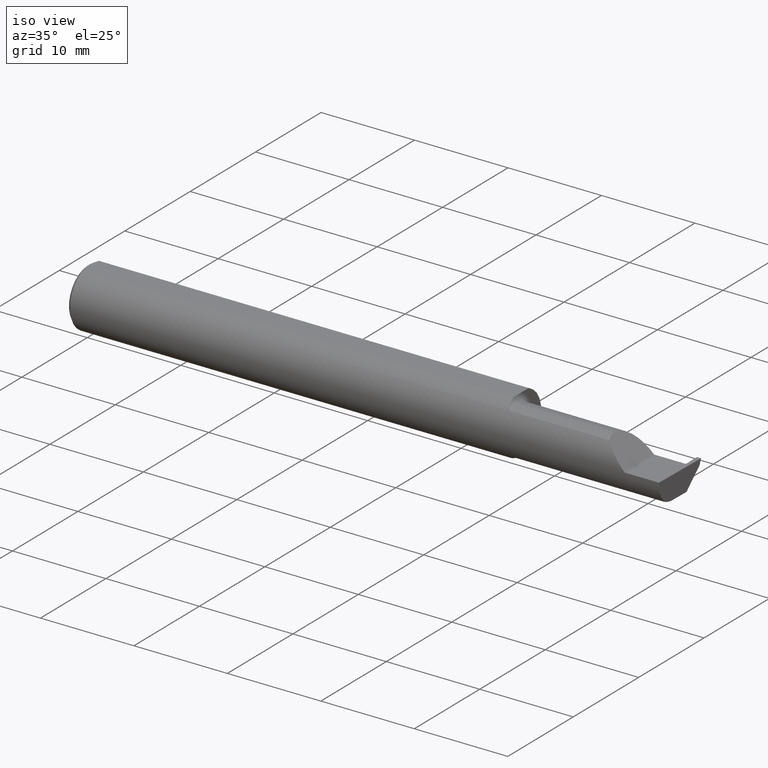
[diagram: clean part render]
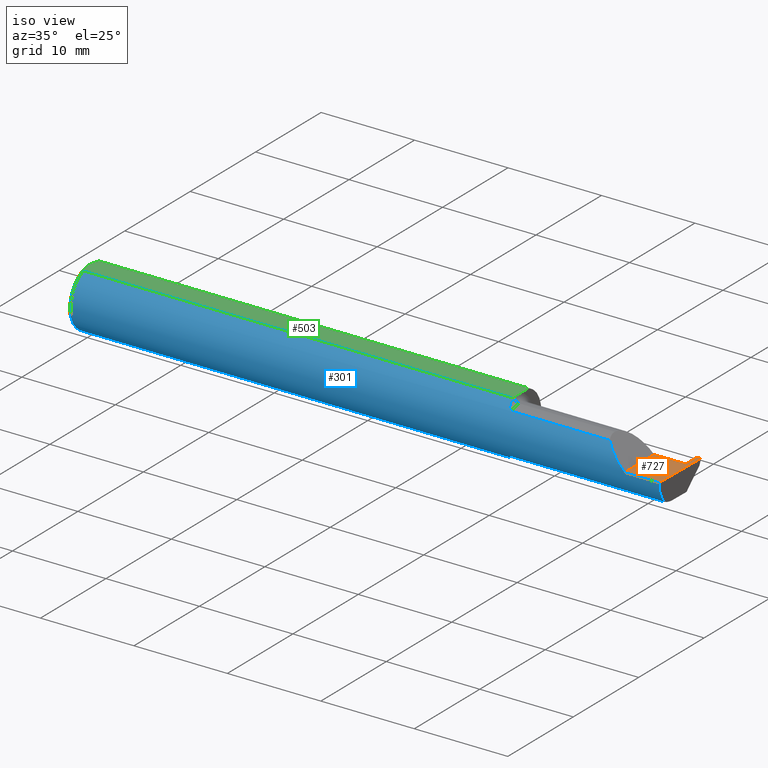
[diagram: same view with three faces highlighted in distinct colors, each labeled with its STEP entity id]
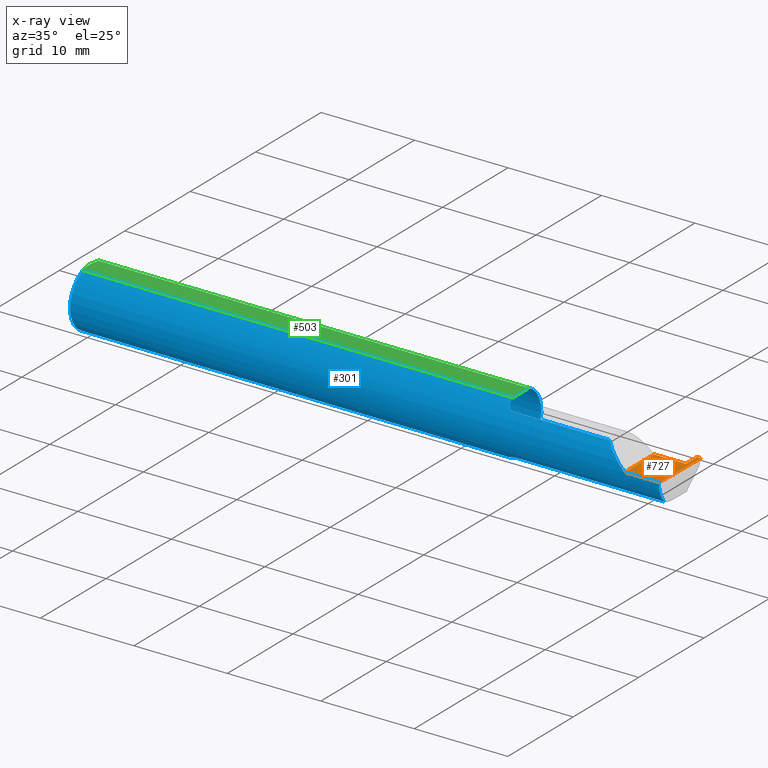
[diagram: x-ray of the same camera — body ghosted, the three highlighted faces saturated]
A machine part, iso view with three faces highlighted in distinct colors.
The next image is the same camera in x-ray (body ghosted, the three faces saturated) — at least one of them is partly hidden behind the body in this view.
Their STEP definitions:

[orange] entity #727 — the highlighted planar face has unit normal (-0, 0, -1).
#1 = VERTEX_POINT ( 'NONE', #428 ) ;
#2 = DIRECTION ( 'NONE',  ( -0.000000000000000000, 1.000000000000000000, -0.000000000000000000 ) ) ;
#4 = VERTEX_POINT ( 'NONE', #366 ) ;
#23 = VECTOR ( 'NONE', #625, 39.37007874015748143 ) ;
#53 = VECTOR ( 'NONE', #253, 39.37007874015748143 ) ;
#61 = VERTEX_POINT ( 'NONE', #266 ) ;
#66 = DIRECTION ( 'NONE',  ( -1.000000000000000000, 0.000000000000000000, 1.224646799147352221E-16 ) ) ;
#69 = CARTESIAN_POINT ( 'NONE',  ( 1.824999999999999956, 0.05414999999999998981, 8.266365894244626938E-17 ) ) ;
#71 = LINE ( 'NONE', #308, #23 ) ;
#93 = ORIENTED_EDGE ( 'NONE', *, *, #730, .T. ) ;
#97 = LINE ( 'NONE', #394, #663 ) ;
#114 = ORIENTED_EDGE ( 'NONE', *, *, #327, .F. ) ;
#120 = CARTESIAN_POINT ( 'NONE',  ( 2.488116473413796825, -0.2002070484001042538, 1.455312279637640045E-18 ) ) ;
#128 = ORIENTED_EDGE ( 'NONE', *, *, #208, .F. ) ;
#129 = FACE_OUTER_BOUND ( 'NONE', #523, .T. ) ;
#161 = LINE ( 'NONE', #120, #478 ) ;
#164 = LINE ( 'NONE', #546, #678 ) ;
#192 = CARTESIAN_POINT ( 'NONE',  ( 2.350000000000000089, -0.2000000000000000111, 1.836970198721028825E-17 ) ) ;
#196 = VECTOR ( 'NONE', #453, 39.37007874015748143 ) ;
#202 = CARTESIAN_POINT ( 'NONE',  ( 2.482499999999999929, 0.05414999999999997593, 8.266348525252012935E-17 ) ) ;
#208 = EDGE_CURVE ( 'NONE', #1, #471, #164, .T. ) ;
#237 = ORIENTED_EDGE ( 'NONE', *, *, #598, .T. ) ;
#239 = VERTEX_POINT ( 'NONE', #531 ) ;
#252 = PLANE ( 'NONE',  #638 ) ;
#253 = DIRECTION ( 'NONE',  ( 1.000000000000000000, 0.000000000000000000, 0.000000000000000000 ) ) ;
#266 = CARTESIAN_POINT ( 'NONE',  ( 2.350000000000000089, 0.05414999999999988572, 1.836970198721028825E-17 ) ) ;
#308 = CARTESIAN_POINT ( 'NONE',  ( 2.499999999999999556, 0.05415000000000005920, 4.902705984595532466E-32 ) ) ;
#327 = EDGE_CURVE ( 'NONE', #61, #541, #618, .T. ) ;
#366 = CARTESIAN_POINT ( 'NONE',  ( 2.495690077103728921, -0.1248499999950965084, 1.733801157256528502E-17 ) ) ;
#371 = CARTESIAN_POINT ( 'NONE',  ( 2.500000000000000000, -0.2000000000000000111, 0.000000000000000000 ) ) ;
#387 = DIRECTION ( 'NONE',  ( 0.01744642479411464761, 0.9998477995484629233, -2.135106780035675284E-18 ) ) ;
#394 = CARTESIAN_POINT ( 'NONE',  ( 2.494380489674781209, -0.1999019447116721915, 6.881915332554903690E-19 ) ) ;
#396 = VERTEX_POINT ( 'NONE', #434 ) ;
#401 = LINE ( 'NONE', #650, #196 ) ;
#428 = CARTESIAN_POINT ( 'NONE',  ( 2.482499999999999929, 0.1221499999999999808, -3.306546357697866753E-19 ) ) ;
#434 = CARTESIAN_POINT ( 'NONE',  ( 2.350000000000000089, -0.1248500000000000026, 1.836970198721028825E-17 ) ) ;
#453 = DIRECTION ( 'NONE',  ( -1.000000000000000000, -0.000000000000000000, -0.000000000000000000 ) ) ;
#468 = EDGE_CURVE ( 'NONE', #4, #471, #97, .T. ) ;
#471 = VERTEX_POINT ( 'NONE', #525 ) ;
#478 = VECTOR ( 'NONE', #720, 39.37007874015748143 ) ;
#523 = EDGE_LOOP ( 'NONE', ( #693, #550, #128, #237, #93, #114, #620 ) ) ;
#525 = CARTESIAN_POINT ( 'NONE',  ( 2.500000000000000444, 0.1221499999999999808, 1.947508823608312588E-17 ) ) ;
#531 = CARTESIAN_POINT ( 'NONE',  ( 2.483684773821554170, 0.05415000000000000369, 1.807306943624157614E-17 ) ) ;
#541 = VERTEX_POINT ( 'NONE', #202 ) ;
#546 = CARTESIAN_POINT ( 'NONE',  ( 2.399999999999999911, 0.1221499999999999808, -3.306546357697866753E-19 ) ) ;
#550 = ORIENTED_EDGE ( 'NONE', *, *, #468, .T. ) ;
#562 = EDGE_CURVE ( 'NONE', #4, #396, #401, .T. ) ;
#598 = EDGE_CURVE ( 'NONE', #1, #239, #161, .T. ) ;
#618 = LINE ( 'NONE', #69, #53 ) ;
#620 = ORIENTED_EDGE ( 'NONE', *, *, #757, .F. ) ;
#621 = DIRECTION ( 'NONE',  ( -1.224646799147352221E-16, 0.000000000000000000, -1.000000000000000000 ) ) ;
#625 = DIRECTION ( 'NONE',  ( -1.000000000000000000, -1.575197027597345022E-15, 1.224646799147352221E-16 ) ) ;
#638 = AXIS2_PLACEMENT_3D ( 'NONE', #371, #621, #66 ) ;
#650 = CARTESIAN_POINT ( 'NONE',  ( 3.749399456654637998E-32, -0.1248500000000000026, 3.061616997868380676E-16 ) ) ;
#663 = VECTOR ( 'NONE', #387, 39.37007874015748854 ) ;
#672 = LINE ( 'NONE', #192, #778 ) ;
#678 = VECTOR ( 'NONE', #773, 39.37007874015748143 ) ;
#693 = ORIENTED_EDGE ( 'NONE', *, *, #562, .F. ) ;
#720 = DIRECTION ( 'NONE',  ( 0.01742050049977531337, -0.9998482515673753346, -2.130797594924657248E-18 ) ) ;
#727 = ADVANCED_FACE ( 'NONE', ( #129 ), #252, .F. ) ;
#730 = EDGE_CURVE ( 'NONE', #239, #541, #71, .T. ) ;
#757 = EDGE_CURVE ( 'NONE', #396, #61, #672, .T. ) ;
#773 = DIRECTION ( 'NONE',  ( 1.000000000000000000, -0.000000000000000000, -0.000000000000000000 ) ) ;
#778 = VECTOR ( 'NONE', #2, 39.37007874015748143 ) ;

[blue] entity #301 — the highlighted cylindrical surface (edge-blend (fillet) strip) has radius 3.1712 mm, axis along (-1, -0, -0).
#4 = VERTEX_POINT ( 'NONE', #366 ) ;
#9 = FACE_OUTER_BOUND ( 'NONE', #124, .T. ) ;
#12 = DIRECTION ( 'NONE',  ( 1.000000000000000000, 0.000000000000000000, 0.000000000000000000 ) ) ;
#15 = CARTESIAN_POINT ( 'NONE',  ( 1.825242610568498014, -0.03840785182185594421, -0.1189375631818110624 ) ) ;
#27 = DIRECTION ( 'NONE',  ( 0.02617296143184116158, -0.0004568507411563390110, 0.9996573249755575929 ) ) ;
#29 = ORIENTED_EDGE ( 'NONE', *, *, #584, .T. ) ;
#31 = CARTESIAN_POINT ( 'NONE',  ( 0.01499999999999999944, 0.000000000000000000, 0.000000000000000000 ) ) ;
#34 = LINE ( 'NONE', #709, #162 ) ;
#38 = ORIENTED_EDGE ( 'NONE', *, *, #154, .F. ) ;
#42 = CARTESIAN_POINT ( 'NONE',  ( 1.829335346929731987, -0.06618116991733533072, 0.1062694618618283127 ) ) ;
#46 =( BOUNDED_CURVE ( )  B_SPLINE_CURVE ( 3, ( #770, #288, #123, #590 ),
 .UNSPECIFIED., .F., .T. ) 
 B_SPLINE_CURVE_WITH_KNOTS ( ( 4, 4 ),
 ( 0.2190942387645155864, 0.9826237902196512941 ),
 .UNSPECIFIED. ) 
 CURVE ( )  GEOMETRIC_REPRESENTATION_ITEM ( )  RATIONAL_B_SPLINE_CURVE ( ( 1.000000000000000000, 0.9520057322288819623, 0.9520057322288819623, 1.000000000000000000 ) ) 
 REPRESENTATION_ITEM ( '' )  );
#54 = CARTESIAN_POINT ( 'NONE',  ( 1.834117122045984649, -0.07738857672837949619, 0.09808127502721006308 ) ) ;
#56 = VERTEX_POINT ( 'NONE', #449 ) ;
#62 = DIRECTION ( 'NONE',  ( 1.000000000000000000, 0.000000000000000000, 0.000000000000000000 ) ) ;
#73 = CARTESIAN_POINT ( 'NONE',  ( 1.833278800716857893, -0.07573621487658335760, -0.09938639293507173234 ) ) ;
#78 = LINE ( 'NONE', #312, #287 ) ;
#80 = B_SPLINE_CURVE_WITH_KNOTS ( 'NONE', 3,
 ( #565, #131, #623, #372, #684, #199, #73, #630, #742, #429, #446, #143 ),
 .UNSPECIFIED., .F., .F.,
 ( 4, 2, 2, 2, 2, 4 ),
 ( 1.963988863453036158E-07, 0.0002052720857047482799, 0.0004103477725231512228, 0.0008204991461599670834, 0.001230650519796782673, 0.001640801893433598479 ),
 .UNSPECIFIED. ) ;
#90 = CARTESIAN_POINT ( 'NONE',  ( 2.495688583004118666, -0.1248499869621840785, -5.705736120969982501E-05 ) ) ;
#104 = CIRCLE ( 'NONE', #555, 0.1248500000000000026 ) ;
#108 = CARTESIAN_POINT ( 'NONE',  ( 0.01499999999999999944, 0.000000000000000000, -0.1248500000000000026 ) ) ;
#111 = CARTESIAN_POINT ( 'NONE',  ( 2.166249999999999787, -0.09015216647662482874, -0.08637192471845768493 ) ) ;
#117 = VERTEX_POINT ( 'NONE', #639 ) ;
#123 = CARTESIAN_POINT ( 'NONE',  ( 2.494835769263151537, -0.1248351010429638308, -0.03262966116142157480 ) ) ;
#124 = EDGE_LOOP ( 'NONE', ( #504, #736, #29, #218, #179, #520, #423, #232, #444, #201, #668, #426, #38, #610 ) ) ;
#131 = CARTESIAN_POINT ( 'NONE',  ( 1.847259638933030468, -0.09015216647662496752, -0.08637192471845754616 ) ) ;
#139 = DIRECTION ( 'NONE',  ( -1.000000000000000000, -0.000000000000000000, -0.000000000000000000 ) ) ;
#143 = CARTESIAN_POINT ( 'NONE',  ( 1.825756598855983848, -0.04384999999999998621, -0.1168961077196328247 ) ) ;
#146 = CARTESIAN_POINT ( 'NONE',  ( 2.493072779947982820, -0.1248043149033065402, -0.09996577117162359916 ) ) ;
#153 = CARTESIAN_POINT ( 'NONE',  ( 1.825756598855983848, -0.04384999999999998621, -0.1168961077196328247 ) ) ;
#154 = EDGE_CURVE ( 'NONE', #476, #400, #670, .T. ) ;
#155 = CARTESIAN_POINT ( 'NONE',  ( 1.849999999999999867, -0.09015216647662482874, 0.08637192471845769881 ) ) ;
#162 = VECTOR ( 'NONE', #714, 39.37007874015748143 ) ;
#176 = VERTEX_POINT ( 'NONE', #108 ) ;
#178 = EDGE_CURVE ( 'NONE', #455, #536, #46, .T. ) ;
#179 = ORIENTED_EDGE ( 'NONE', *, *, #235, .T. ) ;
#193 = CYLINDRICAL_SURFACE ( 'NONE', #716, 0.1248500000000000026 ) ;
#196 = VECTOR ( 'NONE', #453, 39.37007874015748143 ) ;
#199 = CARTESIAN_POINT ( 'NONE',  ( 1.835226514481664628, -0.07966992494485865273, -0.09623747760188201827 ) ) ;
#201 = ORIENTED_EDGE ( 'NONE', *, *, #527, .F. ) ;
#204 = DIRECTION ( 'NONE',  ( 0.000000000000000000, 0.000000000000000000, 1.000000000000000000 ) ) ;
#207 = EDGE_CURVE ( 'NONE', #56, #759, #307, .T. ) ;
#218 = ORIENTED_EDGE ( 'NONE', *, *, #562, .T. ) ;
#224 = VECTOR ( 'NONE', #62, 39.37007874015748143 ) ;
#232 = ORIENTED_EDGE ( 'NONE', *, *, #617, .F. ) ;
#235 = EDGE_CURVE ( 'NONE', #396, #368, #644, .T. ) ;
#270 = CARTESIAN_POINT ( 'NONE',  ( 1.847502509400849924, -0.09015216647698162666, 0.08637192471808539940 ) ) ;
#278 = CARTESIAN_POINT ( 'NONE',  ( 0.01499999999999999944, 0.000000000000000000, 0.000000000000000000 ) ) ;
#279 = CARTESIAN_POINT ( 'NONE',  ( 1.836053217927789527, -0.08094812012701396720, 0.09514231764808572800 ) ) ;
#287 = VECTOR ( 'NONE', #12, 39.37007874015748143 ) ;
#288 = CARTESIAN_POINT ( 'NONE',  ( 2.494256244271084721, -0.1126860773865890480, -0.06285177167860772629 ) ) ;
#291 = LINE ( 'NONE', #111, #340 ) ;
#301 = ADVANCED_FACE ( 'NONE', ( #9 ), #193, .T. ) ;
#307 = B_SPLINE_CURVE_WITH_KNOTS ( 'NONE', 3,
 ( #344, #427, #42, #54, #279, #399, #673, #363, #270, #155 ),
 .UNSPECIFIED., .F., .F.,
 ( 4, 2, 2, 2, 4 ),
 ( 5.065792501958445587E-07, 0.0007388407002080924022, 0.001108007760687040964, 0.001292591290926509281, 0.001477174821165978032 ),
 .UNSPECIFIED. ) ;
#312 = CARTESIAN_POINT ( 'NONE',  ( 2.166249999999999787, -0.09015216647662482874, 0.08637192471845768493 ) ) ;
#314 = CARTESIAN_POINT ( 'NONE',  ( 1.825756598855983848, -0.04384999999999998621, -0.1168961077196328247 ) ) ;
#318 = CARTESIAN_POINT ( 'NONE',  ( 1.849999999999999867, -0.09015216647662482874, 0.08637192471845769881 ) ) ;
#319 = DIRECTION ( 'NONE',  ( -1.000000000000000000, -0.000000000000000000, -0.000000000000000000 ) ) ;
#329 = EDGE_CURVE ( 'NONE', #681, #476, #80, .T. ) ;
#340 = VECTOR ( 'NONE', #608, 39.37007874015748143 ) ;
#343 = CARTESIAN_POINT ( 'NONE',  ( 0.000000000000000000, -0.04895916665957456698, 0.1148500000000000076 ) ) ;
#344 = CARTESIAN_POINT ( 'NONE',  ( 1.826326891871132618, -0.04895916665958127689, 0.1148500000000000076 ) ) ;
#363 = CARTESIAN_POINT ( 'NONE',  ( 1.845195245915188798, -0.08928014009842923093, 0.08728826463235835054 ) ) ;
#366 = CARTESIAN_POINT ( 'NONE',  ( 2.495690077103728921, -0.1248499999950965084, 1.733801157256528502E-17 ) ) ;
#368 = VERTEX_POINT ( 'NONE', #439 ) ;
#372 = CARTESIAN_POINT ( 'NONE',  ( 1.840875432832429937, -0.08647060418110441571, -0.09007670266896472544 ) ) ;
#396 = VERTEX_POINT ( 'NONE', #434 ) ;
#399 = CARTESIAN_POINT ( 'NONE',  ( 1.839990549600782233, -0.08554147198593005375, 0.09096407607054020350 ) ) ;
#400 = VERTEX_POINT ( 'NONE', #508 ) ;
#401 = LINE ( 'NONE', #650, #196 ) ;
#402 = CARTESIAN_POINT ( 'NONE',  ( 2.287163018370355072, -0.1127002472623169216, 0.06283698162964553025 ) ) ;
#418 = EDGE_CURVE ( 'NONE', #176, #632, #788, .T. ) ;
#423 = ORIENTED_EDGE ( 'NONE', *, *, #207, .F. ) ;
#426 = ORIENTED_EDGE ( 'NONE', *, *, #530, .F. ) ;
#427 = CARTESIAN_POINT ( 'NONE',  ( 1.827489051389916908, -0.05793447593726083755, 0.1110239341510881883 ) ) ;
#429 = CARTESIAN_POINT ( 'NONE',  ( 1.826929090759343621, -0.05370719728932728254, -0.1128289886859671493 ) ) ;
#431 = CIRCLE ( 'NONE', #614, 0.1248500000000000026 ) ;
#434 = CARTESIAN_POINT ( 'NONE',  ( 2.350000000000000089, -0.1248500000000000026, 1.836970198721028825E-17 ) ) ;
#439 = CARTESIAN_POINT ( 'NONE',  ( 2.263628075281542529, -0.09015216647662421812, 0.08637192471845822617 ) ) ;
#444 = ORIENTED_EDGE ( 'NONE', *, *, #418, .F. ) ;
#446 = CARTESIAN_POINT ( 'NONE',  ( 1.826227715916084238, -0.04883822427082834539, -0.1150249279297937272 ) ) ;
#449 = CARTESIAN_POINT ( 'NONE',  ( 1.826326891871132618, -0.04895916665958127689, 0.1148500000000000076 ) ) ;
#453 = DIRECTION ( 'NONE',  ( -1.000000000000000000, -0.000000000000000000, -0.000000000000000000 ) ) ;
#455 = VERTEX_POINT ( 'NONE', #576 ) ;
#456 = DIRECTION ( 'NONE',  ( 0.000000000000000000, 0.000000000000000000, 1.000000000000000000 ) ) ;
#463 = CARTESIAN_POINT ( 'NONE',  ( 1.824999999999999734, 0.000000000000000000, 0.000000000000000000 ) ) ;
#464 = CARTESIAN_POINT ( 'NONE',  ( 2.350000000000000089, -0.1248500000000000026, 1.836970198721028825E-17 ) ) ;
#476 = VERTEX_POINT ( 'NONE', #153 ) ;
#498 = CARTESIAN_POINT ( 'NONE',  ( 0.000000000000000000, 0.000000000000000000, 0.000000000000000000 ) ) ;
#501 = AXIS2_PLACEMENT_3D ( 'NONE', #31, #319, #456 ) ;
#504 = ORIENTED_EDGE ( 'NONE', *, *, #667, .F. ) ;
#506 = DIRECTION ( 'NONE',  ( 0.000000000000000000, 0.000000000000000000, 1.000000000000000000 ) ) ;
#508 = CARTESIAN_POINT ( 'NONE',  ( 1.824999999999999734, -0.02715330672748003313, -0.1218614805168695830 ) ) ;
#510 = CARTESIAN_POINT ( 'NONE',  ( 1.824999999999999734, -0.03284222813693379872, -0.1205938689030582739 ) ) ;
#520 = ORIENTED_EDGE ( 'NONE', *, *, #744, .F. ) ;
#527 = EDGE_CURVE ( 'NONE', #117, #176, #431, .T. ) ;
#530 = EDGE_CURVE ( 'NONE', #400, #600, #104, .T. ) ;
#536 = VERTEX_POINT ( 'NONE', #90 ) ;
#539 = EDGE_CURVE ( 'NONE', #600, #117, #34, .T. ) ;
#555 = AXIS2_PLACEMENT_3D ( 'NONE', #463, #706, #580 ) ;
#562 = EDGE_CURVE ( 'NONE', #4, #396, #401, .T. ) ;
#565 = CARTESIAN_POINT ( 'NONE',  ( 1.849999999999999867, -0.09015216647662478711, -0.08637192471845772657 ) ) ;
#576 = CARTESIAN_POINT ( 'NONE',  ( 2.494033449660867152, -0.09015216647662482874, -0.08637192471845768493 ) ) ;
#580 = DIRECTION ( 'NONE',  ( 0.000000000000000000, 0.000000000000000000, -1.000000000000000000 ) ) ;
#584 = EDGE_CURVE ( 'NONE', #536, #4, #694, .T. ) ;
#590 = CARTESIAN_POINT ( 'NONE',  ( 2.495688583004118666, -0.1248499869621840785, -5.705736120969982501E-05 ) ) ;
#600 = VERTEX_POINT ( 'NONE', #734 ) ;
#608 = DIRECTION ( 'NONE',  ( -1.000000000000000000, -0.000000000000000000, -0.000000000000000000 ) ) ;
#610 = ORIENTED_EDGE ( 'NONE', *, *, #329, .F. ) ;
#614 = AXIS2_PLACEMENT_3D ( 'NONE', #278, #646, #204 ) ;
#617 = EDGE_CURVE ( 'NONE', #632, #56, #781, .T. ) ;
#623 = CARTESIAN_POINT ( 'NONE',  ( 1.844784064659361844, -0.08911389870154562409, -0.08746251087962762794 ) ) ;
#630 = CARTESIAN_POINT ( 'NONE',  ( 1.830064983703085568, -0.06736177101644136300, -0.1052426774175049123 ) ) ;
#632 = VERTEX_POINT ( 'NONE', #658 ) ;
#639 = CARTESIAN_POINT ( 'NONE',  ( 0.01499999999999987454, 0.04895916665957496944, 0.1148500000000000076 ) ) ;
#644 =( BOUNDED_CURVE ( )  B_SPLINE_CURVE ( 3, ( #464, #723, #402, #656 ),
 .UNSPECIFIED., .F., .T. ) 
 B_SPLINE_CURVE_WITH_KNOTS ( ( 4, 4 ),
 ( 4.712388980384690562, 5.476375539154175520 ),
 .UNSPECIFIED. ) 
 CURVE ( )  GEOMETRIC_REPRESENTATION_ITEM ( )  RATIONAL_B_SPLINE_CURVE ( ( 1.000000000000000000, 0.9519489620492029847, 0.9519489620492029847, 1.000000000000000000 ) ) 
 REPRESENTATION_ITEM ( '' )  );
#646 = DIRECTION ( 'NONE',  ( -1.000000000000000000, -0.000000000000000000, -0.000000000000000000 ) ) ;
#650 = CARTESIAN_POINT ( 'NONE',  ( 3.749399456654637998E-32, -0.1248500000000000026, 3.061616997868380676E-16 ) ) ;
#656 = CARTESIAN_POINT ( 'NONE',  ( 2.263628075281542529, -0.09015216647662421812, 0.08637192471845822617 ) ) ;
#658 = CARTESIAN_POINT ( 'NONE',  ( 0.01499999999999999944, -0.04895916665957456698, 0.1148500000000000076 ) ) ;
#667 = EDGE_CURVE ( 'NONE', #455, #681, #291, .T. ) ;
#668 = ORIENTED_EDGE ( 'NONE', *, *, #539, .F. ) ;
#670 = B_SPLINE_CURVE_WITH_KNOTS ( 'NONE', 3,
 ( #314, #15, #510, #746 ),
 .UNSPECIFIED., .F., .F.,
 ( 4, 4 ),
 ( 0.001640801893433598479, 0.002088276671954516356 ),
 .UNSPECIFIED. ) ;
#673 = CARTESIAN_POINT ( 'NONE',  ( 1.841486677516483095, -0.08696861555848796332, 0.08959154238187706787 ) ) ;
#681 = VERTEX_POINT ( 'NONE', #784 ) ;
#684 = CARTESIAN_POINT ( 'NONE',  ( 1.839311064734461709, -0.08485061678078668901, -0.09161469295857052608 ) ) ;
#694 = LINE ( 'NONE', #146, #750 ) ;
#706 = DIRECTION ( 'NONE',  ( 1.000000000000000000, 0.000000000000000000, 0.000000000000000000 ) ) ;
#709 = CARTESIAN_POINT ( 'NONE',  ( 0.000000000000000000, 0.04895916665957456698, 0.1148500000000000076 ) ) ;
#714 = DIRECTION ( 'NONE',  ( -1.000000000000000000, -0.000000000000000000, -0.000000000000000000 ) ) ;
#716 = AXIS2_PLACEMENT_3D ( 'NONE', #498, #139, #506 ) ;
#723 = CARTESIAN_POINT ( 'NONE',  ( 2.317406910344188997, -0.1248500000000000304, 0.03259308965581166062 ) ) ;
#734 = CARTESIAN_POINT ( 'NONE',  ( 1.824999999999999734, 0.04895916665957496944, 0.1148500000000000076 ) ) ;
#736 = ORIENTED_EDGE ( 'NONE', *, *, #178, .T. ) ;
#742 = CARTESIAN_POINT ( 'NONE',  ( 1.828850144156349611, -0.06295012366509157575, -0.1079450122012245300 ) ) ;
#744 = EDGE_CURVE ( 'NONE', #759, #368, #78, .T. ) ;
#746 = CARTESIAN_POINT ( 'NONE',  ( 1.824999999999999734, -0.02715330672748003313, -0.1218614805168695830 ) ) ;
#750 = VECTOR ( 'NONE', #27, 39.37007874015748854 ) ;
#759 = VERTEX_POINT ( 'NONE', #318 ) ;
#770 = CARTESIAN_POINT ( 'NONE',  ( 2.494033449660867152, -0.09015216647662482874, -0.08637192471845768493 ) ) ;
#781 = LINE ( 'NONE', #343, #224 ) ;
#784 = CARTESIAN_POINT ( 'NONE',  ( 1.849999999999999867, -0.09015216647662478711, -0.08637192471845772657 ) ) ;
#788 = CIRCLE ( 'NONE', #501, 0.1248500000000000026 ) ;

[green] entity #503 — the highlighted planar face has unit normal (0, -0, 1).
#24 = CARTESIAN_POINT ( 'NONE',  ( 0.009410502401328750890, 0.03310661131402438395, 0.1148499999999999938 ) ) ;
#34 = LINE ( 'NONE', #709, #162 ) ;
#43 = ORIENTED_EDGE ( 'NONE', *, *, #617, .T. ) ;
#45 = CARTESIAN_POINT ( 'NONE',  ( 1.826365755776839572, -0.03650543323727817313, 0.1148500000000000215 ) ) ;
#51 = EDGE_CURVE ( 'NONE', #117, #271, #622, .T. ) ;
#56 = VERTEX_POINT ( 'NONE', #449 ) ;
#62 = DIRECTION ( 'NONE',  ( 1.000000000000000000, 0.000000000000000000, 0.000000000000000000 ) ) ;
#84 = CARTESIAN_POINT ( 'NONE',  ( 0.01193974418109659125, 0.04115525648180412555, 0.1148500000000000215 ) ) ;
#89 = ORIENTED_EDGE ( 'NONE', *, *, #385, .T. ) ;
#103 = FACE_OUTER_BOUND ( 'NONE', #419, .T. ) ;
#117 = VERTEX_POINT ( 'NONE', #639 ) ;
#133 = ORIENTED_EDGE ( 'NONE', *, *, #676, .T. ) ;
#162 = VECTOR ( 'NONE', #714, 39.37007874015748143 ) ;
#166 = ORIENTED_EDGE ( 'NONE', *, *, #213, .T. ) ;
#169 = CARTESIAN_POINT ( 'NONE',  ( 0.004999999999999964542, -0.008410771716546819321, 0.1148500000000000215 ) ) ;
#171 = CARTESIAN_POINT ( 'NONE',  ( 1.824999999999999734, 0.0001781444078671173391, 0.1148500000000000076 ) ) ;
#174 = CARTESIAN_POINT ( 'NONE',  ( 1.826090261609496501, -0.02916889382056610247, 0.1148499999999999938 ) ) ;
#177 = CARTESIAN_POINT ( 'NONE',  ( 1.826365755776839350, -0.04470142088177659484, 0.1148500000000000076 ) ) ;
#187 = CARTESIAN_POINT ( 'NONE',  ( 1.824999999999999734, -0.1248500000000000165, 0.1148500000000000076 ) ) ;
#213 = EDGE_CURVE ( 'NONE', #271, #632, #459, .T. ) ;
#217 = CARTESIAN_POINT ( 'NONE',  ( 0.004999999999999990563, 1.454187663965904829E-17, 0.1148500000000000076 ) ) ;
#220 = CARTESIAN_POINT ( 'NONE',  ( 0.01195732443765547617, -0.04120008761723503027, 0.1148500000000000076 ) ) ;
#223 = CARTESIAN_POINT ( 'NONE',  ( 1.825400391910593445, -0.01449986171080068845, 0.1148500000000000076 ) ) ;
#224 = VECTOR ( 'NONE', #62, 39.37007874015748143 ) ;
#227 = CARTESIAN_POINT ( 'NONE',  ( 1.826365755776839350, -0.04385000000000001397, 0.1148500000000000076 ) ) ;
#249 = CARTESIAN_POINT ( 'NONE',  ( 1.824999999999999734, 0.0001781444078671173391, 0.1148500000000000076 ) ) ;
#250 = CARTESIAN_POINT ( 'NONE',  ( 0.01499999999999987454, 0.04895916665957496944, 0.1148500000000000076 ) ) ;
#261 = CARTESIAN_POINT ( 'NONE',  ( 0.004999999999999962808, 0.008410227287019804779, 0.1148500000000000076 ) ) ;
#269 = CARTESIAN_POINT ( 'NONE',  ( 1.826365755776839350, -0.04385000000000001397, 0.1148500000000000076 ) ) ;
#271 = VERTEX_POINT ( 'NONE', #336 ) ;
#297 = CARTESIAN_POINT ( 'NONE',  ( 1.826362484150211518, -0.04555293709217374948, 0.1148500000000000076 ) ) ;
#321 = VECTOR ( 'NONE', #573, 39.37007874015748143 ) ;
#336 = CARTESIAN_POINT ( 'NONE',  ( 0.004999999999999990563, 1.454187663965904829E-17, 0.1148500000000000076 ) ) ;
#343 = CARTESIAN_POINT ( 'NONE',  ( 0.000000000000000000, -0.04895916665957456698, 0.1148500000000000076 ) ) ;
#347 = CARTESIAN_POINT ( 'NONE',  ( 1.826326891871132618, -0.04895916665958127689, 0.1148500000000000076 ) ) ;
#381 = CARTESIAN_POINT ( 'NONE',  ( 0.005947935873631229539, 0.01679708999422689641, 0.1148500000000000076 ) ) ;
#383 = DIRECTION ( 'NONE',  ( 0.000000000000000000, -0.000000000000000000, 1.000000000000000000 ) ) ;
#385 = EDGE_CURVE ( 'NONE', #392, #600, #513, .T. ) ;
#392 = VERTEX_POINT ( 'NONE', #249 ) ;
#408 = CARTESIAN_POINT ( 'NONE',  ( 0.005932194444709715242, -0.01671525318617308672, 0.1148499999999999938 ) ) ;
#419 = EDGE_LOOP ( 'NONE', ( #43, #133, #461, #89, #616, #497, #166 ) ) ;
#421 = CARTESIAN_POINT ( 'NONE',  ( 1.826365755776839350, -0.04385000000000001397, 0.1148500000000000076 ) ) ;
#449 = CARTESIAN_POINT ( 'NONE',  ( 1.826326891871132618, -0.04895916665958127689, 0.1148500000000000076 ) ) ;
#459 = B_SPLINE_CURVE_WITH_KNOTS ( 'NONE', 3,
 ( #217, #169, #408, #599, #220, #469 ),
 .UNSPECIFIED., .F., .F.,
 ( 4, 2, 4 ),
 ( 0.003658435455108827606, 0.004289327297787134258, 0.004920219140465441343 ),
 .UNSPECIFIED. ) ;
#461 = ORIENTED_EDGE ( 'NONE', *, *, #619, .T. ) ;
#469 = CARTESIAN_POINT ( 'NONE',  ( 0.01499999999999999944, -0.04895916665957456698, 0.1148500000000000076 ) ) ;
#473 = B_SPLINE_CURVE_WITH_KNOTS ( 'NONE', 3,
 ( #347, #551, #549, #297, #177, #421 ),
 .UNSPECIFIED., .F., .F.,
 ( 4, 2, 4 ),
 ( 0.009355882855462111999, 0.009420520835871137866, 0.009485158816280163732 ),
 .UNSPECIFIED. ) ;
#485 = CARTESIAN_POINT ( 'NONE',  ( 1.824999999999999734, -0.007185469346090035854, 0.1148500000000000076 ) ) ;
#490 = VERTEX_POINT ( 'NONE', #269 ) ;
#497 = ORIENTED_EDGE ( 'NONE', *, *, #51, .T. ) ;
#503 = ADVANCED_FACE ( 'NONE', ( #103 ), #518, .T. ) ;
#513 = LINE ( 'NONE', #187, #321 ) ;
#518 = PLANE ( 'NONE',  #687 ) ;
#539 = EDGE_CURVE ( 'NONE', #600, #117, #34, .T. ) ;
#549 = CARTESIAN_POINT ( 'NONE',  ( 1.826349474474282086, -0.04725615793152067312, 0.1148499999999999938 ) ) ;
#551 = CARTESIAN_POINT ( 'NONE',  ( 1.826339737573306587, -0.04810771292240875741, 0.1148500000000000215 ) ) ;
#573 = DIRECTION ( 'NONE',  ( -0.000000000000000000, 1.000000000000000000, 0.000000000000000000 ) ) ;
#599 = CARTESIAN_POINT ( 'NONE',  ( 0.009415874254822407391, -0.03313958207962815206, 0.1148500000000000076 ) ) ;
#600 = VERTEX_POINT ( 'NONE', #734 ) ;
#616 = ORIENTED_EDGE ( 'NONE', *, *, #539, .T. ) ;
#617 = EDGE_CURVE ( 'NONE', #632, #56, #781, .T. ) ;
#619 = EDGE_CURVE ( 'NONE', #490, #392, #719, .T. ) ;
#622 = B_SPLINE_CURVE_WITH_KNOTS ( 'NONE', 3,
 ( #250, #84, #24, #381, #261, #631 ),
 .UNSPECIFIED., .F., .F.,
 ( 4, 2, 4 ),
 ( 0.002396733445051244405, 0.003027584450080036006, 0.003658435455108827606 ),
 .UNSPECIFIED. ) ;
#631 = CARTESIAN_POINT ( 'NONE',  ( 0.004999999999999990563, 1.454187663965904829E-17, 0.1148500000000000076 ) ) ;
#632 = VERTEX_POINT ( 'NONE', #658 ) ;
#637 = DIRECTION ( 'NONE',  ( 1.000000000000000000, 0.000000000000000000, -0.000000000000000000 ) ) ;
#639 = CARTESIAN_POINT ( 'NONE',  ( 0.01499999999999987454, 0.04895916665957496944, 0.1148500000000000076 ) ) ;
#658 = CARTESIAN_POINT ( 'NONE',  ( 0.01499999999999999944, -0.04895916665957456698, 0.1148500000000000076 ) ) ;
#676 = EDGE_CURVE ( 'NONE', #56, #490, #473, .T. ) ;
#687 = AXIS2_PLACEMENT_3D ( 'NONE', #756, #383, #637 ) ;
#709 = CARTESIAN_POINT ( 'NONE',  ( 0.000000000000000000, 0.04895916665957456698, 0.1148500000000000076 ) ) ;
#714 = DIRECTION ( 'NONE',  ( -1.000000000000000000, -0.000000000000000000, -0.000000000000000000 ) ) ;
#719 = B_SPLINE_CURVE_WITH_KNOTS ( 'NONE', 3,
 ( #227, #45, #174, #223, #485, #171 ),
 .UNSPECIFIED., .F., .F.,
 ( 4, 2, 4 ),
 ( 0.009485158816280163732, 0.01004274199597738476, 0.01060032517567460753 ),
 .UNSPECIFIED. ) ;
#734 = CARTESIAN_POINT ( 'NONE',  ( 1.824999999999999734, 0.04895916665957496944, 0.1148500000000000076 ) ) ;
#756 = CARTESIAN_POINT ( 'NONE',  ( 2.500000000000000000, -0.1248500000000000165, 0.1148500000000000076 ) ) ;
#781 = LINE ( 'NONE', #343, #224 ) ;